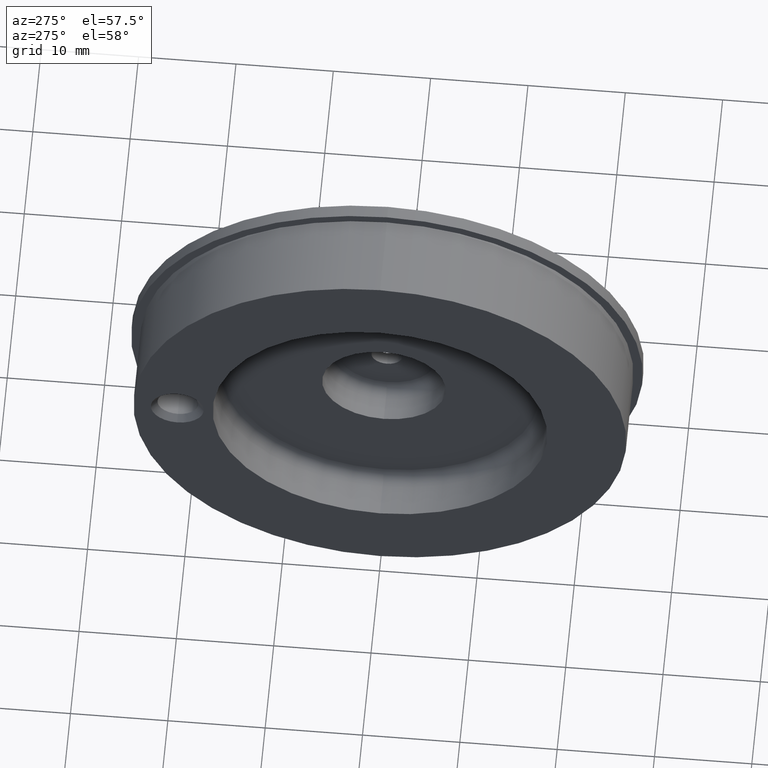
[diagram: clean part render]
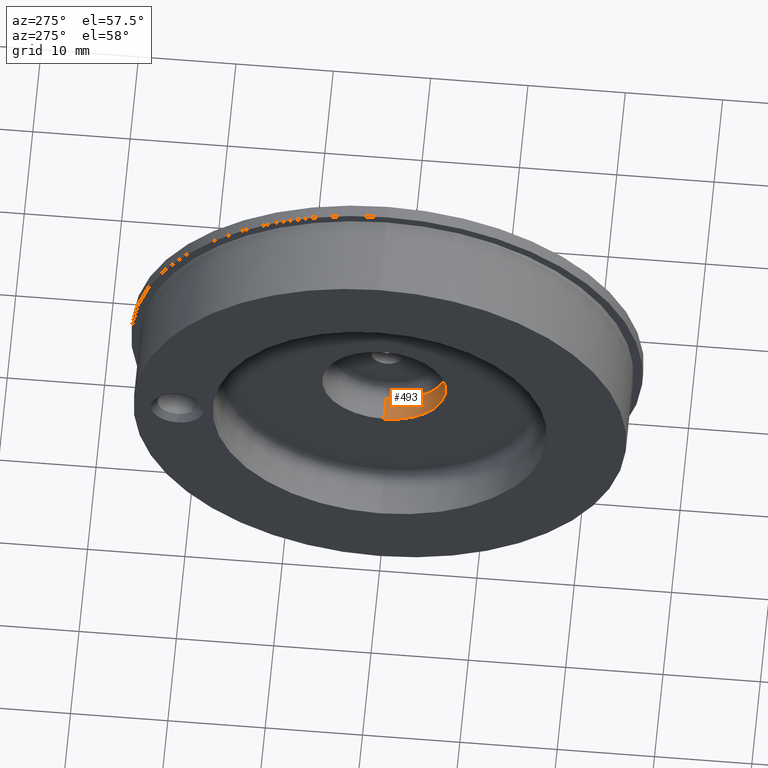
[diagram: same view with one face highlighted and labeled with its STEP entity id]
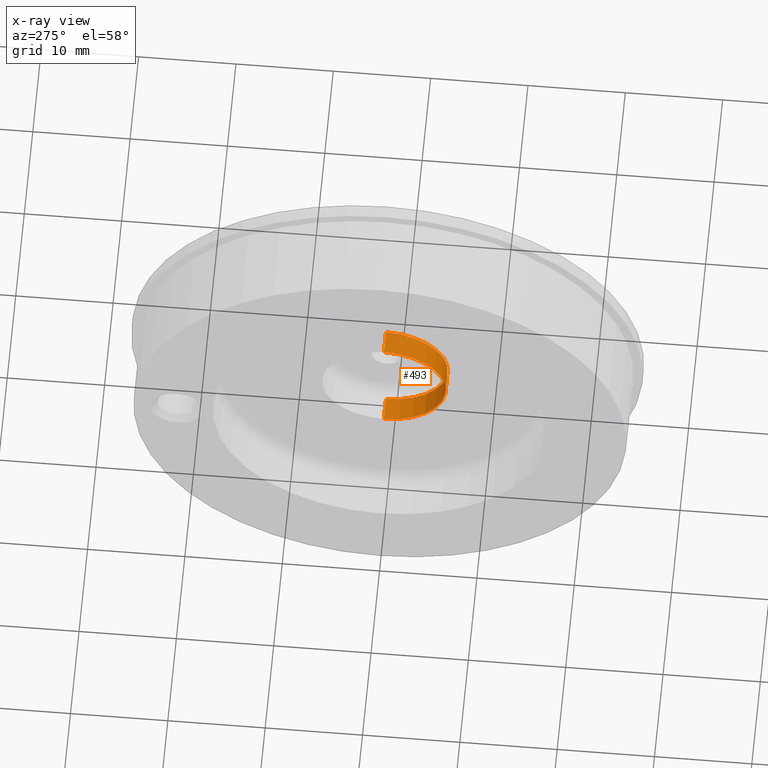
[diagram: x-ray of the same camera — body ghosted, the highlighted face saturated]
A machine part, auxiliary view. The second image highlights one B-rep face of the part: STEP entity #493.
The next image is the same camera in x-ray: the body ghosted, the highlighted face saturated — about 1% of this face is hidden behind the body in this view.
In plain terms, the highlighted cylindrical surface (partial cylindrical patch) has radius 6.35 mm, axis along (1, -0, -0).
Its self-contained STEP definition (entity closure, byte-faithful):
#34 = CARTESIAN_POINT ( 'NONE',  ( -0.1950000000000000100, 0.0000000000000000000, 0.0000000000000000000 ) ) ;
#54 = DIRECTION ( 'NONE',  ( 0.0000000000000000000, 0.0000000000000000000, -1.000000000000000000 ) ) ;
#80 = DIRECTION ( 'NONE',  ( 1.000000000000000000, -0.0000000000000000000, -0.0000000000000000000 ) ) ;
#104 = DIRECTION ( 'NONE',  ( 0.0000000000000000000, 0.0000000000000000000, -1.000000000000000000 ) ) ;
#112 = DIRECTION ( 'NONE',  ( 1.000000000000000000, -0.0000000000000000000, -0.0000000000000000000 ) ) ;
#121 = DIRECTION ( 'NONE',  ( 1.000000000000000000, -0.0000000000000000000, -0.0000000000000000000 ) ) ;
#122 = CARTESIAN_POINT ( 'NONE',  ( 0.0000000000000000000, 0.0000000000000000000, -0.2499999999999999700 ) ) ;
#132 = DIRECTION ( 'NONE',  ( 1.000000000000000000, -0.0000000000000000000, -0.0000000000000000000 ) ) ;
#133 = CARTESIAN_POINT ( 'NONE',  ( -0.09999999999999997800, 0.0000000000000000000, 0.0000000000000000000 ) ) ;
#156 = CARTESIAN_POINT ( 'NONE',  ( 0.0000000000000000000, 3.061616997868382400E-017, 0.2499999999999999700 ) ) ;
#195 = CYLINDRICAL_SURFACE ( 'NONE', #604, 0.2499999999999999700 ) ;
#201 = ORIENTED_EDGE ( 'NONE', *, *, #635, .F. ) ;
#229 = FACE_OUTER_BOUND ( 'NONE', #268, .T. ) ;
#239 = VERTEX_POINT ( 'NONE', #727 ) ;
#245 = CIRCLE ( 'NONE', #540, 0.2499999999999999700 ) ;
#264 = ORIENTED_EDGE ( 'NONE', *, *, #601, .T. ) ;
#268 = EDGE_LOOP ( 'NONE', ( #201, #264, #470, #385 ) ) ;
#321 = LINE ( 'NONE', #122, #389 ) ;
#367 = CIRCLE ( 'NONE', #518, 0.2499999999999999700 ) ;
#385 = ORIENTED_EDGE ( 'NONE', *, *, #588, .F. ) ;
#389 = VECTOR ( 'NONE', #121, 39.37007874015748100 ) ;
#396 = VECTOR ( 'NONE', #112, 39.37007874015748100 ) ;
#409 = LINE ( 'NONE', #156, #396 ) ;
#421 = VERTEX_POINT ( 'NONE', #657 ) ;
#446 = VERTEX_POINT ( 'NONE', #726 ) ;
#457 = VERTEX_POINT ( 'NONE', #728 ) ;
#470 = ORIENTED_EDGE ( 'NONE', *, *, #592, .T. ) ;
#493 = ADVANCED_FACE ( 'NONE', ( #229 ), #195, .F. ) ;
#518 = AXIS2_PLACEMENT_3D ( 'NONE', #34, #132, #54 ) ;
#540 = AXIS2_PLACEMENT_3D ( 'NONE', #133, #80, #104 ) ;
#588 = EDGE_CURVE ( 'NONE', #457, #239, #321, .T. ) ;
#592 = EDGE_CURVE ( 'NONE', #421, #239, #245, .T. ) ;
#601 = EDGE_CURVE ( 'NONE', #446, #421, #409, .T. ) ;
#604 = AXIS2_PLACEMENT_3D ( 'NONE', #729, #649, #737 ) ;
#635 = EDGE_CURVE ( 'NONE', #446, #457, #367, .T. ) ;
#649 = DIRECTION ( 'NONE',  ( 1.000000000000000000, -0.0000000000000000000, -0.0000000000000000000 ) ) ;
#657 = CARTESIAN_POINT ( 'NONE',  ( -0.09999999999999997800, 3.061616997868382400E-017, 0.2499999999999999700 ) ) ;
#726 = CARTESIAN_POINT ( 'NONE',  ( -0.1950000000000000100, 3.061616997868382400E-017, 0.2499999999999999700 ) ) ;
#727 = CARTESIAN_POINT ( 'NONE',  ( -0.09999999999999997800, 0.0000000000000000000, -0.2499999999999999700 ) ) ;
#728 = CARTESIAN_POINT ( 'NONE',  ( -0.1950000000000000100, 0.0000000000000000000, -0.2499999999999999700 ) ) ;
#729 = CARTESIAN_POINT ( 'NONE',  ( 0.0000000000000000000, 0.0000000000000000000, 0.0000000000000000000 ) ) ;
#737 = DIRECTION ( 'NONE',  ( 0.0000000000000000000, 0.0000000000000000000, -1.000000000000000000 ) ) ;